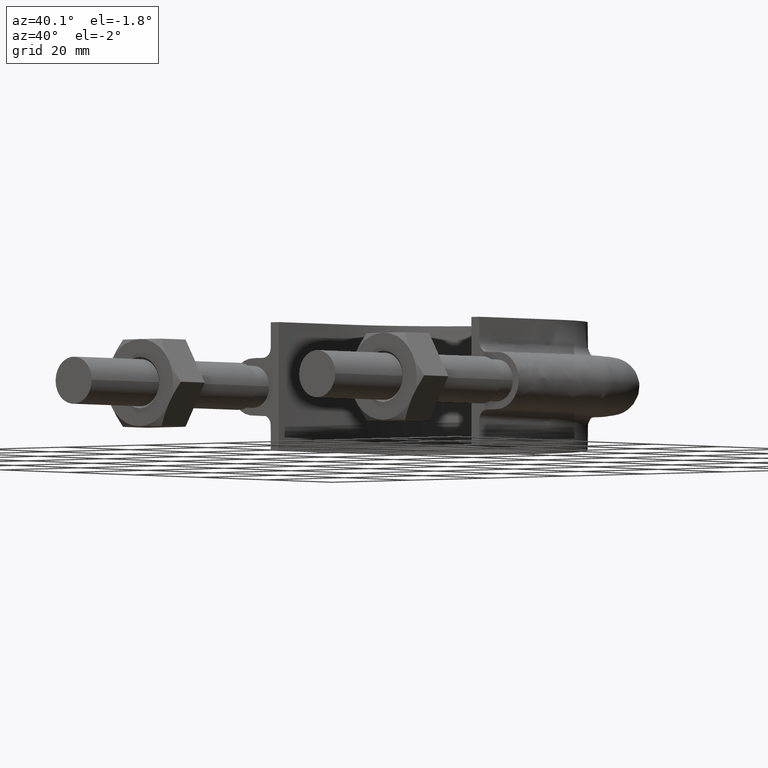
[diagram: clean part render]
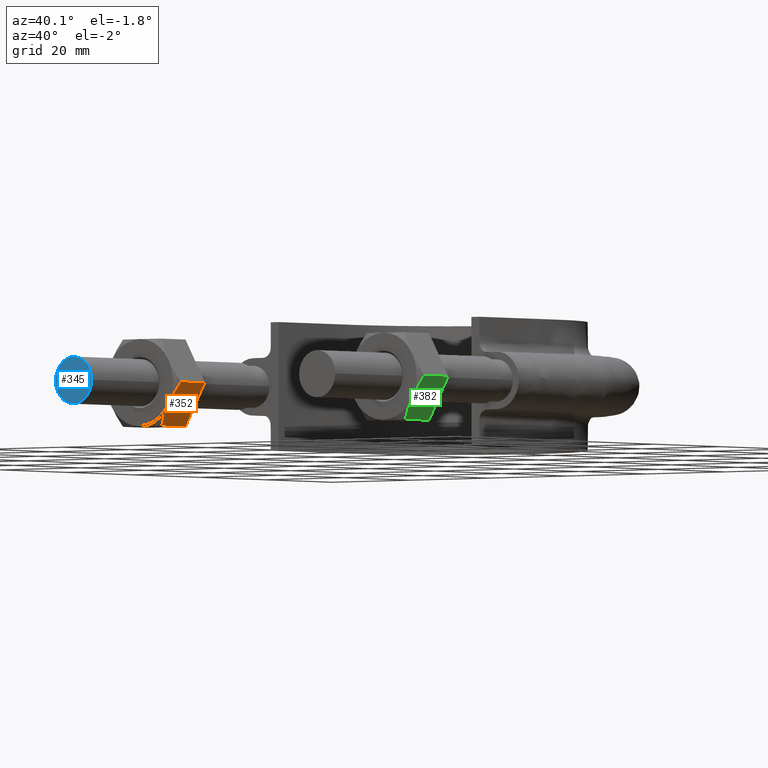
[diagram: same view with three faces highlighted in distinct colors, each labeled with its STEP entity id]
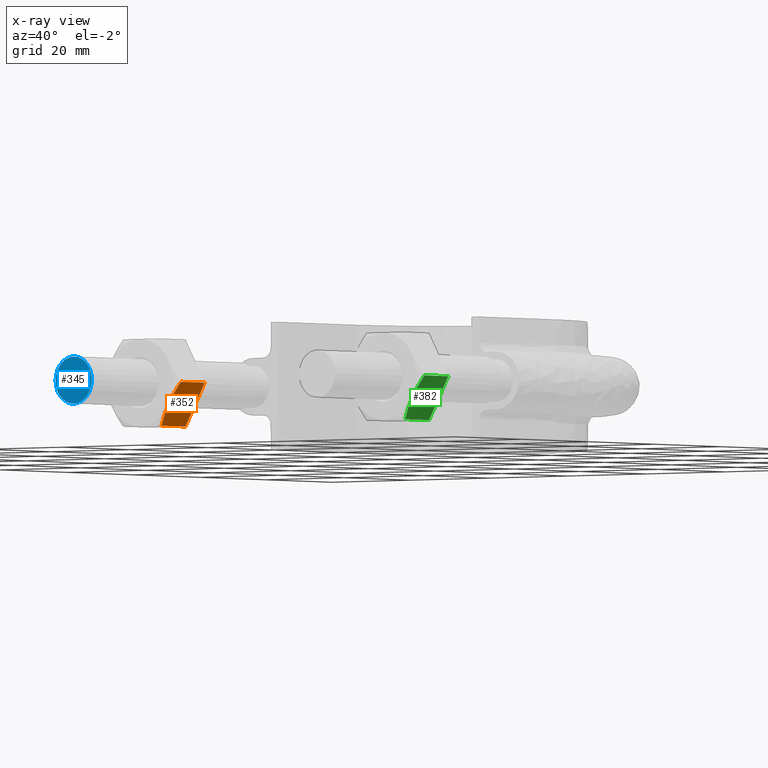
[diagram: x-ray of the same camera — body ghosted, the three highlighted faces saturated]
A machine part, auxiliary view with three faces highlighted in distinct colors.
The next image is the same camera in x-ray (body ghosted, the three faces saturated) — at least one of them is partly hidden behind the body in this view.
Their STEP definitions:

[orange] entity #352 — the highlighted planar face has unit normal (-0.866, 0, 0.5).
#352 = ADVANCED_FACE( '', ( #476 ), #477, .F. );
#476 = FACE_OUTER_BOUND( '', #1475, .T. );
#477 = PLANE( '', #1476 );
#1475 = EDGE_LOOP( '', ( #1801, #1802, #1803, #1804, #1805 ) );
#1476 = AXIS2_PLACEMENT_3D( '', #1806, #1807, #1808 );
#1801 = ORIENTED_EDGE( '', *, *, #2177, .F. );
#1802 = ORIENTED_EDGE( '', *, *, #2160, .F. );
#1803 = ORIENTED_EDGE( '', *, *, #2178, .F. );
#1804 = ORIENTED_EDGE( '', *, *, #2179, .F. );
#1805 = ORIENTED_EDGE( '', *, *, #2180, .F. );
#1806 = CARTESIAN_POINT( '', ( -21.1850454237763, 27.9999999999973, -2.84589029859311E-012 ) );
#1807 = DIRECTION( '', ( -0.866025403784293, 5.90322481812929E-017, 0.500000000000252 ) );
#1808 = DIRECTION( '', ( 6.81645687566880E-017, 1.00000000000000, -6.16297582204226E-033 ) );
#2160 = EDGE_CURVE( '', #2341, #2344, #2345, .T. );
#2177 = EDGE_CURVE( '', #2344, #2374, #2375, .T. );
#2178 = EDGE_CURVE( '', #2376, #2341, #2377, .F. );
#2179 = EDGE_CURVE( '', #2378, #2376, #2379, .T. );
#2180 = EDGE_CURVE( '', #2374, #2378, #2380, .T. );
#2341 = VERTEX_POINT( '', #2831 );
#2344 = VERTEX_POINT( '', #2834 );
#2345 = B_SPLINE_CURVE_WITH_KNOTS( '', 3, ( #2835, #2836, #2837, #2838, #2839, #2840 ), .UNSPECIFIED., .F., .F., ( 4, 2, 4 ), ( 1.74337551706054E-017, 0.00246745482903604, 0.00493490965807205 ), .UNSPECIFIED. );
#2374 = VERTEX_POINT( '', #2903 );
#2375 = B_SPLINE_CURVE_WITH_KNOTS( '', 3, ( #2904, #2905, #2906, #2907, #2908, #2909 ), .UNSPECIFIED., .F., .F., ( 4, 2, 4 ), ( 8.67361737988404E-019, 0.00246745482903601, 0.00493490965807202 ), .UNSPECIFIED. );
#2376 = VERTEX_POINT( '', #2910 );
#2377 = LINE( '', #2911, #2912 );
#2378 = VERTEX_POINT( '', #2913 );
#2379 = LINE( '', #2914, #2915 );
#2380 = LINE( '', #2916, #2917 );
#2831 = CARTESIAN_POINT( '', ( -26.0775337474861, 20.7505553499438, -8.47403835210001 ) );
#2834 = CARTESIAN_POINT( '', ( -23.6387840678335, 19.9999999999973, -4.25000000000215 ) );
#2835 = CARTESIAN_POINT( '', ( -26.0775337474861, 20.7505553499438, -8.47403835210003 ) );
#2836 = CARTESIAN_POINT( '', ( -25.6790699211731, 20.5215585493630, -7.78387875994805 ) );
#2837 = CARTESIAN_POINT( '', ( -25.2775056556657, 20.3328582843680, -7.08834904958562 ) );
#2838 = CARTESIAN_POINT( '', ( -24.4654371916767, 20.0716504305264, -5.68180521073321 ) );
#2839 = CARTESIAN_POINT( '', ( -24.0548670429290, 19.9999999999973, -4.97067685303160 ) );
#2840 = CARTESIAN_POINT( '', ( -23.6387840678335, 19.9999999999973, -4.25000000000216 ) );
#2903 = CARTESIAN_POINT( '', ( -21.2000343881808, 20.7505553499438, -0.0259616479043286 ) );
#2904 = CARTESIAN_POINT( '', ( -23.6387840678335, 19.9999999999973, -4.25000000000216 ) );
#2905 = CARTESIAN_POINT( '', ( -23.2227010927379, 19.9999999999973, -3.52932314697272 ) );
#2906 = CARTESIAN_POINT( '', ( -22.8121309439902, 20.0716504305264, -2.81819478927112 ) );
#2907 = CARTESIAN_POINT( '', ( -22.0000624800012, 20.3328582843680, -1.41165095041872 ) );
#2908 = CARTESIAN_POINT( '', ( -21.5984982144938, 20.5215585493630, -0.716121240056289 ) );
#2909 = CARTESIAN_POINT( '', ( -21.2000343881808, 20.7505553499438, -0.0259616479043141 ) );
#2910 = CARTESIAN_POINT( '', ( -26.0775337474861, 27.9999999999973, -8.47403835210000 ) );
#2911 = CARTESIAN_POINT( '', ( -26.0775337474861, 27.9999999999973, -8.47403835210000 ) );
#2912 = VECTOR( '', #3250, 1000.00000000000 );
#2913 = CARTESIAN_POINT( '', ( -21.2000343881808, 27.9999999999973, -0.0259616479043295 ) );
#2914 = CARTESIAN_POINT( '', ( -18.7387840678310, 27.9999999999973, 4.23704895708392 ) );
#2915 = VECTOR( '', #3251, 1000.00000000000 );
#2916 = CARTESIAN_POINT( '', ( -21.2000343881808, 27.9999999999973, -0.0259616479043280 ) );
#2917 = VECTOR( '', #3252, 1000.00000000000 );
#3250 = DIRECTION( '', ( 2.44921270764476E-016, 1.00000000000000, 3.06151588455594E-016 ) );
#3251 = DIRECTION( '', ( -0.500000000000252, 3.87595688393758E-016, -0.866025403784293 ) );
#3252 = DIRECTION( '', ( 2.44921270764476E-016, 1.00000000000000, 3.06151588455594E-016 ) );

[blue] entity #345 — the highlighted planar face has unit normal (-0, -1, -0).
#345 = ADVANCED_FACE( '', ( #462 ), #463, .T. );
#462 = FACE_OUTER_BOUND( '', #1461, .T. );
#463 = PLANE( '', #1462 );
#1461 = EDGE_LOOP( '', ( #1757 ) );
#1462 = AXIS2_PLACEMENT_3D( '', #1758, #1759, #1760 );
#1757 = ORIENTED_EDGE( '', *, *, #2158, .T. );
#1758 = CARTESIAN_POINT( '', ( -31.0000000000000, 7.59255939369874E-015, 1.98998532496137E-016 ) );
#1759 = DIRECTION( '', ( -2.44921270764475E-016, -1.00000000000000, -3.06151588455594E-016 ) );
#1760 = DIRECTION( '', ( 0.000000000000000, 3.06151588455594E-016, -1.00000000000000 ) );
#2158 = EDGE_CURVE( '', #2339, #2339, #2340, .T. );
#2339 = VERTEX_POINT( '', #2829 );
#2340 = CIRCLE( '', #2830, 4.60000000000000 );
#2829 = CARTESIAN_POINT( '', ( -26.4000000000000, 6.46592154818215E-015, 1.98998532496137E-016 ) );
#2830 = AXIS2_PLACEMENT_3D( '', #3222, #3223, #3224 );
#3222 = CARTESIAN_POINT( '', ( -31.0000000000000, 7.59255939369874E-015, 1.98998532496137E-016 ) );
#3223 = DIRECTION( '', ( -2.44921270764475E-016, -1.00000000000000, -3.06151588455594E-016 ) );
#3224 = DIRECTION( '', ( 1.00000000000000, -2.44921270764475E-016, -3.74915180455534E-032 ) );

[green] entity #382 — the highlighted planar face has unit normal (-0.866, 0, 0.5).
#382 = ADVANCED_FACE( '', ( #543 ), #544, .F. );
#543 = FACE_OUTER_BOUND( '', #1542, .T. );
#544 = PLANE( '', #1543 );
#1542 = EDGE_LOOP( '', ( #2026, #2027, #2028, #2029, #2030 ) );
#1543 = AXIS2_PLACEMENT_3D( '', #2031, #2032, #2033 );
#2026 = ORIENTED_EDGE( '', *, *, #2250, .F. );
#2027 = ORIENTED_EDGE( '', *, *, #2212, .F. );
#2028 = ORIENTED_EDGE( '', *, *, #2251, .F. );
#2029 = ORIENTED_EDGE( '', *, *, #2252, .F. );
#2030 = ORIENTED_EDGE( '', *, *, #2253, .F. );
#2031 = CARTESIAN_POINT( '', ( 40.8149545762237, 27.9999999999973, -2.84589029859311E-012 ) );
#2032 = DIRECTION( '', ( -0.866025403784293, 5.90322481812929E-017, 0.500000000000252 ) );
#2033 = DIRECTION( '', ( 6.81645687566880E-017, 1.00000000000000, -6.16297582204226E-033 ) );
#2212 = EDGE_CURVE( '', #2427, #2430, #2431, .T. );
#2250 = EDGE_CURVE( '', #2430, #2495, #2496, .T. );
#2251 = EDGE_CURVE( '', #2497, #2427, #2498, .F. );
#2252 = EDGE_CURVE( '', #2499, #2497, #2500, .T. );
#2253 = EDGE_CURVE( '', #2495, #2499, #2501, .T. );
#2427 = VERTEX_POINT( '', #2995 );
#2430 = VERTEX_POINT( '', #2998 );
#2431 = B_SPLINE_CURVE_WITH_KNOTS( '', 3, ( #2999, #3000, #3001, #3002, #3003, #3004 ), .UNSPECIFIED., .F., .F., ( 4, 2, 4 ), ( 2.38485049154419E-017, 0.00246745482903604, 0.00493490965807205 ), .UNSPECIFIED. );
#2495 = VERTEX_POINT( '', #3125 );
#2496 = B_SPLINE_CURVE_WITH_KNOTS( '', 3, ( #3126, #3127, #3128, #3129, #3130, #3131 ), .UNSPECIFIED., .F., .F., ( 4, 2, 4 ), ( 8.67361737988404E-019, 0.00246745482903600, 0.00493490965807200 ), .UNSPECIFIED. );
#2497 = VERTEX_POINT( '', #3132 );
#2498 = LINE( '', #3133, #3134 );
#2499 = VERTEX_POINT( '', #3135 );
#2500 = LINE( '', #3136, #3137 );
#2501 = LINE( '', #3138, #3139 );
#2995 = CARTESIAN_POINT( '', ( 35.9224662525139, 20.7505553499438, -8.47403835210000 ) );
#2998 = CARTESIAN_POINT( '', ( 38.3612159321665, 19.9999999999973, -4.25000000000215 ) );
#2999 = CARTESIAN_POINT( '', ( 35.9224662525139, 20.7505553499438, -8.47403835210002 ) );
#3000 = CARTESIAN_POINT( '', ( 36.3209300788269, 20.5215585493630, -7.78387875994805 ) );
#3001 = CARTESIAN_POINT( '', ( 36.7224943443343, 20.3328582843680, -7.08834904958561 ) );
#3002 = CARTESIAN_POINT( '', ( 37.5345628083233, 20.0716504305264, -5.68180521073320 ) );
#3003 = CARTESIAN_POINT( '', ( 37.9451329570710, 19.9999999999973, -4.97067685303160 ) );
#3004 = CARTESIAN_POINT( '', ( 38.3612159321665, 19.9999999999973, -4.25000000000216 ) );
#3125 = CARTESIAN_POINT( '', ( 40.7999656118192, 20.7505553499438, -0.0259616479043382 ) );
#3126 = CARTESIAN_POINT( '', ( 38.3612159321665, 19.9999999999973, -4.25000000000216 ) );
#3127 = CARTESIAN_POINT( '', ( 38.7772989072621, 19.9999999999973, -3.52932314697272 ) );
#3128 = CARTESIAN_POINT( '', ( 39.1878690560098, 20.0716504305264, -2.81819478927113 ) );
#3129 = CARTESIAN_POINT( '', ( 39.9999375199988, 20.3328582843680, -1.41165095041872 ) );
#3130 = CARTESIAN_POINT( '', ( 40.4015017855062, 20.5215585493630, -0.716121240056296 ) );
#3131 = CARTESIAN_POINT( '', ( 40.7999656118192, 20.7505553499438, -0.0259616479043232 ) );
#3132 = CARTESIAN_POINT( '', ( 35.9224662525139, 27.9999999999973, -8.47403835209999 ) );
#3133 = CARTESIAN_POINT( '', ( 35.9224662525139, 27.9999999999973, -8.47403835209998 ) );
#3134 = VECTOR( '', #3372, 1000.00000000000 );
#3135 = CARTESIAN_POINT( '', ( 40.7999656118192, 27.9999999999973, -0.0259616479043375 ) );
#3136 = CARTESIAN_POINT( '', ( 43.2612159321690, 27.9999999999973, 4.23704895708392 ) );
#3137 = VECTOR( '', #3373, 1000.00000000000 );
#3138 = CARTESIAN_POINT( '', ( 40.7999656118192, 27.9999999999973, -0.0259616479043410 ) );
#3139 = VECTOR( '', #3374, 1000.00000000000 );
#3372 = DIRECTION( '', ( 2.44921270764476E-016, 1.00000000000000, 3.06151588455594E-016 ) );
#3373 = DIRECTION( '', ( -0.500000000000252, 3.87595688393758E-016, -0.866025403784293 ) );
#3374 = DIRECTION( '', ( 2.44921270764476E-016, 1.00000000000000, 3.06151588455594E-016 ) );